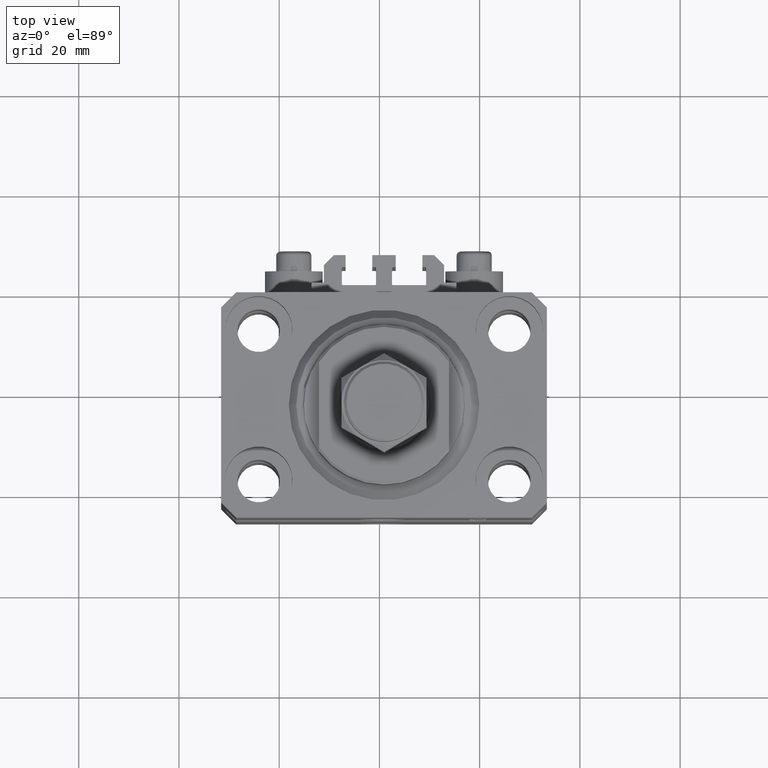
[diagram: clean part render]
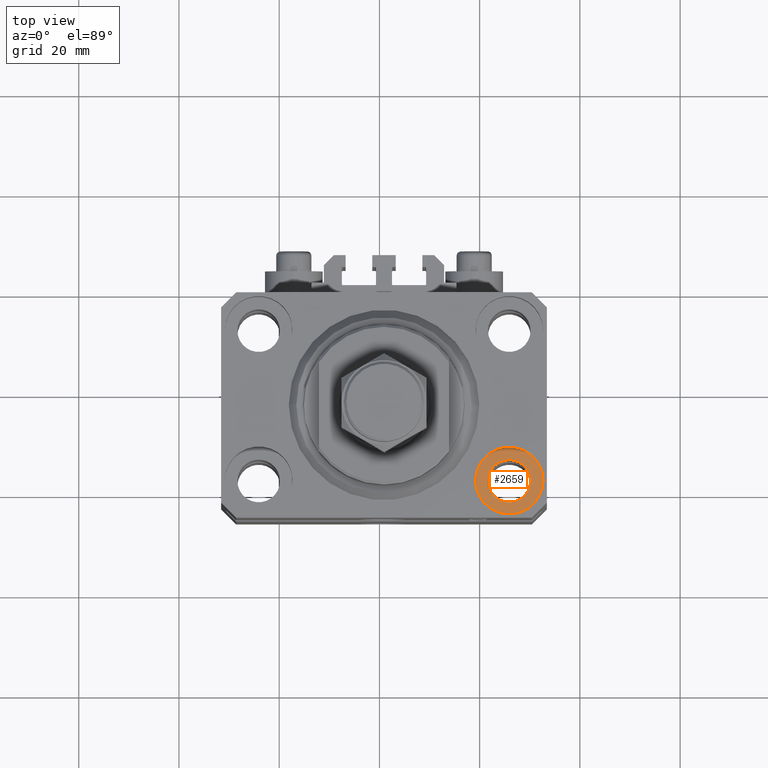
[diagram: same view with one face highlighted and labeled with its STEP entity id]
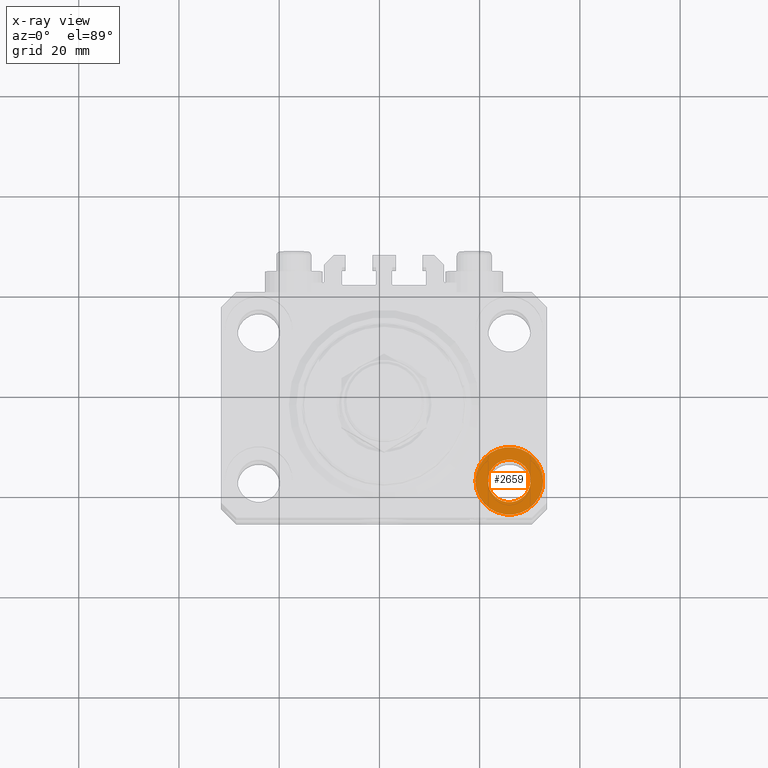
[diagram: x-ray of the same camera — body ghosted, the highlighted face saturated]
A machine part, top view. The second image highlights one B-rep face of the part: STEP entity #2659.
The next image is the same camera in x-ray: the body ghosted, the highlighted face saturated — about 0% of this face is hidden behind the body in this view.
In plain terms, the highlighted planar face has unit normal (0, 0, 1).
Its self-contained STEP definition (entity closure, byte-faithful):
#1559 = DIRECTION ( 'NONE',  ( 1.000000000000000000, 0.000000000000000000, 0.000000000000000000 ) ) ;
#2659 = ADVANCED_FACE ( 'NONE', ( #41564, #7366 ), #15092, .T. ) ;
#3853 = AXIS2_PLACEMENT_3D ( 'NONE', #31514, #39260, #1559 ) ;
#4586 = ORIENTED_EDGE ( 'NONE', *, *, #48132, .F. ) ;
#4849 = VERTEX_POINT ( 'NONE', #19039 ) ;
#5196 = DIRECTION ( 'NONE',  ( 0.000000000000000000, 0.000000000000000000, 1.000000000000000000 ) ) ;
#5645 = CIRCLE ( 'NONE', #12039, 4.249999999977462473 ) ;
#6557 = ORIENTED_EDGE ( 'NONE', *, *, #28352, .T. ) ;
#7366 = FACE_OUTER_BOUND ( 'NONE', #10623, .T. ) ;
#7498 = VERTEX_POINT ( 'NONE', #23747 ) ;
#7630 = ORIENTED_EDGE ( 'NONE', *, *, #23157, .F. ) ;
#7801 = VERTEX_POINT ( 'NONE', #28578 ) ;
#10623 = EDGE_LOOP ( 'NONE', ( #6557, #32221 ) ) ;
#12039 = AXIS2_PLACEMENT_3D ( 'NONE', #38659, #5196, #23188 ) ;
#15092 = PLANE ( 'NONE',  #44252 ) ;
#16386 = EDGE_CURVE ( 'NONE', #7801, #45649, #44609, .T. ) ;
#18428 = DIRECTION ( 'NONE',  ( 0.000000000000000000, 0.000000000000000000, 1.000000000000000000 ) ) ;
#19039 = CARTESIAN_POINT ( 'NONE',  ( 29.24999999997746869, -15.00000000000000000, -9.000000000000000000 ) ) ;
#20259 = CIRCLE ( 'NONE', #25835, 4.249999999977462473 ) ;
#23157 = EDGE_CURVE ( 'NONE', #4849, #7498, #5645, .T. ) ;
#23188 = DIRECTION ( 'NONE',  ( 1.000000000000000000, 0.000000000000000000, 0.000000000000000000 ) ) ;
#23567 = DIRECTION ( 'NONE',  ( 0.000000000000000000, 0.000000000000000000, 1.000000000000000000 ) ) ;
#23747 = CARTESIAN_POINT ( 'NONE',  ( 20.75000000002254197, -15.00000000000000000, -9.000000000000000000 ) ) ;
#25835 = AXIS2_PLACEMENT_3D ( 'NONE', #32049, #47279, #43533 ) ;
#27210 = EDGE_LOOP ( 'NONE', ( #7630, #4586 ) ) ;
#28352 = EDGE_CURVE ( 'NONE', #45649, #7801, #29378, .T. ) ;
#28578 = CARTESIAN_POINT ( 'NONE',  ( 18.25000000002253842, -15.00000000000000000, -9.000000000000000000 ) ) ;
#29378 = CIRCLE ( 'NONE', #3853, 6.749999999977465137 ) ;
#30326 = CARTESIAN_POINT ( 'NONE',  ( 25.00000000000000355, -15.00000000000000000, -9.000000000000000000 ) ) ;
#31514 = CARTESIAN_POINT ( 'NONE',  ( 25.00000000000000355, -15.00000000000000000, -9.000000000000000000 ) ) ;
#32049 = CARTESIAN_POINT ( 'NONE',  ( 25.00000000000000355, -15.00000000000000000, -9.000000000000000000 ) ) ;
#32221 = ORIENTED_EDGE ( 'NONE', *, *, #16386, .T. ) ;
#32289 = DIRECTION ( 'NONE',  ( 1.000000000000000000, 0.000000000000000000, -0.000000000000000000 ) ) ;
#32882 = CARTESIAN_POINT ( 'NONE',  ( 31.74999999997746869, -15.00000000000000000, -9.000000000000000000 ) ) ;
#38222 = AXIS2_PLACEMENT_3D ( 'NONE', #44395, #18428, #45140 ) ;
#38659 = CARTESIAN_POINT ( 'NONE',  ( 25.00000000000000355, -15.00000000000000000, -9.000000000000000000 ) ) ;
#39260 = DIRECTION ( 'NONE',  ( 0.000000000000000000, 0.000000000000000000, 1.000000000000000000 ) ) ;
#41564 = FACE_BOUND ( 'NONE', #27210, .T. ) ;
#43533 = DIRECTION ( 'NONE',  ( 1.000000000000000000, 0.000000000000000000, 0.000000000000000000 ) ) ;
#44252 = AXIS2_PLACEMENT_3D ( 'NONE', #30326, #23567, #32289 ) ;
#44395 = CARTESIAN_POINT ( 'NONE',  ( 25.00000000000000355, -15.00000000000000000, -9.000000000000000000 ) ) ;
#44609 = CIRCLE ( 'NONE', #38222, 6.749999999977465137 ) ;
#45140 = DIRECTION ( 'NONE',  ( 1.000000000000000000, 0.000000000000000000, 0.000000000000000000 ) ) ;
#45649 = VERTEX_POINT ( 'NONE', #32882 ) ;
#47279 = DIRECTION ( 'NONE',  ( 0.000000000000000000, 0.000000000000000000, 1.000000000000000000 ) ) ;
#48132 = EDGE_CURVE ( 'NONE', #7498, #4849, #20259, .T. ) ;